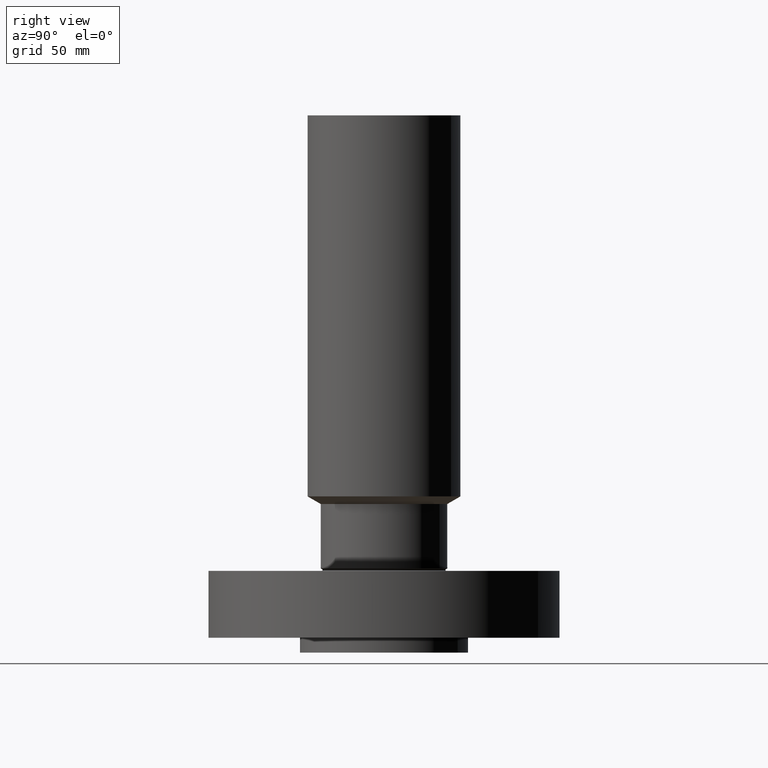
[diagram: clean part render]
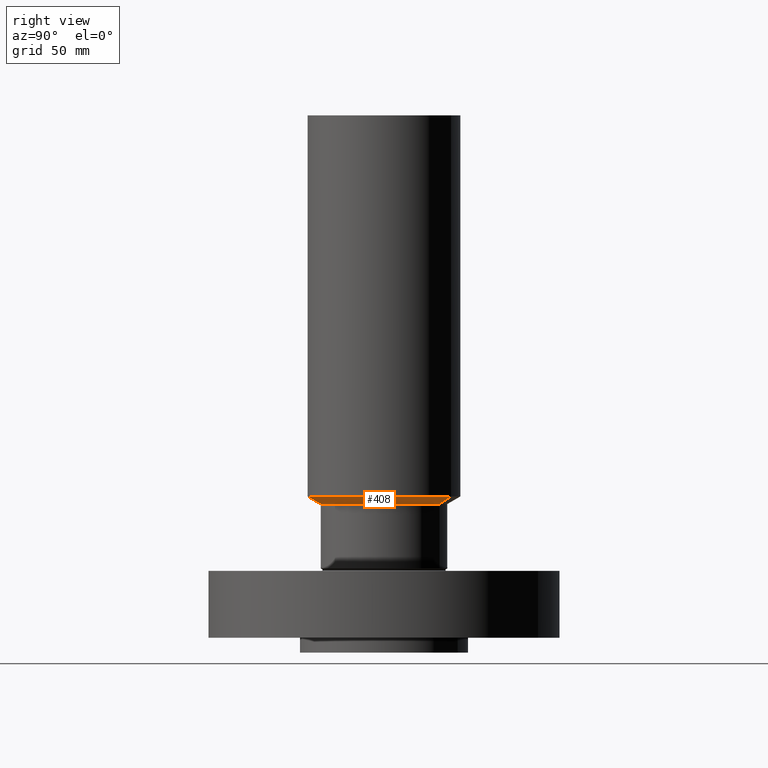
[diagram: same view with one face highlighted and labeled with its STEP entity id]
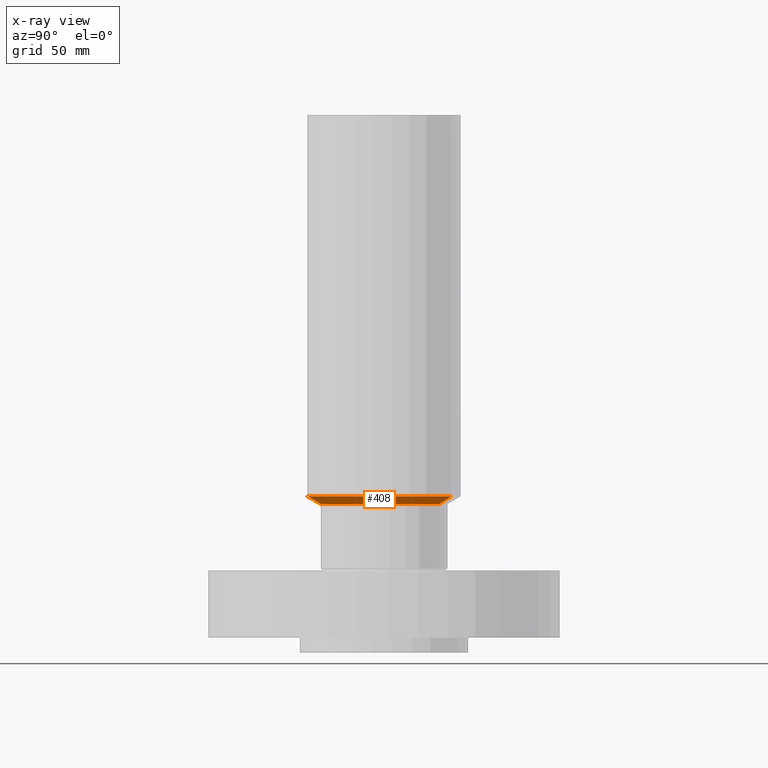
[diagram: x-ray of the same camera — body ghosted, the highlighted face saturated]
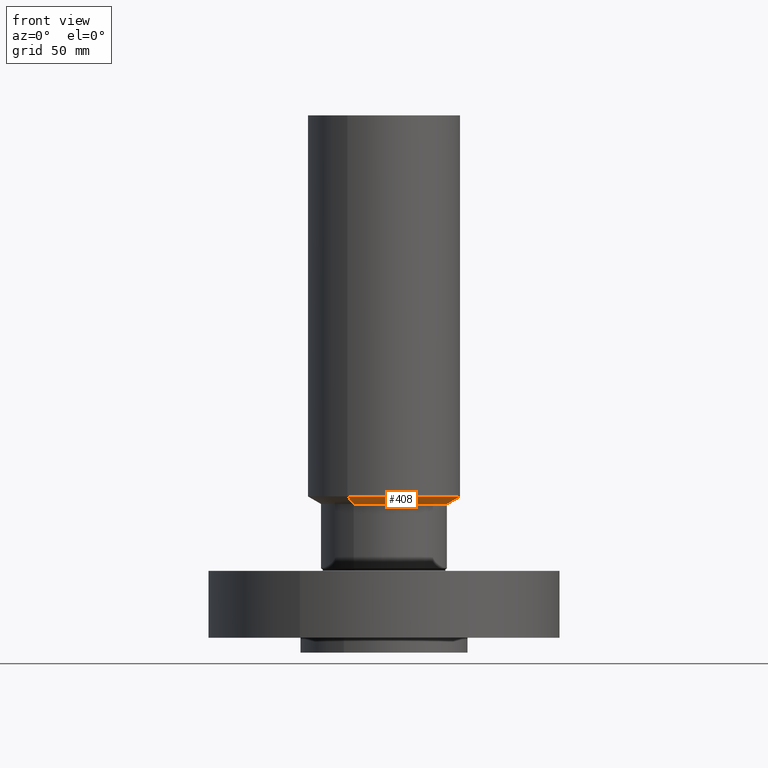
[diagram: same view with one face highlighted and labeled with its STEP entity id]
A machine part, right view. The second image highlights one B-rep face of the part: STEP entity #408.
The next image is the same camera in x-ray: the body ghosted, the highlighted face saturated — about 0% of this face is hidden behind the body in this view.
A second angle (front view) of the same face is appended — the face is thin or edge-on in the first view.
In plain terms, the highlighted conical surface has half-angle 60 deg.
Its self-contained STEP definition (entity closure, byte-faithful):
#349=AXIS2_PLACEMENT_3D('Circle Axis2P3D',#347,#348,$) ;
#381=AXIS2_PLACEMENT_3D('Cone Axis2P3D',#378,#379,#380) ;
#392=AXIS2_PLACEMENT_3D('Circle Axis2P3D',#390,#391,$) ;
#344=CARTESIAN_POINT('Vertex',(0.508191070922,0.930237515608,2.24000000001)) ;
#347=CARTESIAN_POINT('Axis2P3D Location',(0.,0.,2.24000000001)) ;
#351=CARTESIAN_POINT('Vertex',(-0.508191070922,-0.930237515608,2.24000000001)) ;
#378=CARTESIAN_POINT('Axis2P3D Location',(0.,0.,2.24000000001)) ;
#383=CARTESIAN_POINT('Line Origine',(0.560927880169,1.02677159742,2.30350852962)) ;
#387=CARTESIAN_POINT('Vertex',(0.613664689416,1.12330567922,2.36701705923)) ;
#390=CARTESIAN_POINT('Axis2P3D Location',(0.,0.,2.36701705923)) ;
#394=CARTESIAN_POINT('Vertex',(-0.613664689416,-1.12330567922,2.36701705923)) ;
#397=CARTESIAN_POINT('Line Origine',(-0.560927880169,-1.02677159742,2.30350852962)) ;
#348=DIRECTION('Axis2P3D Direction',(0.,0.,-0.0393700787402)) ;
#379=DIRECTION('Axis2P3D Direction',(-0.,-0.,0.0393700787402)) ;
#380=DIRECTION('Axis2P3D XDirection',(0.0188750212049,0.0345504945626,0.)) ;
#384=DIRECTION('Vector Direction',(0.0163462478604,0.0299216060045,0.0196850393701)) ;
#391=DIRECTION('Axis2P3D Direction',(-0.,0.,0.0393700787402)) ;
#398=DIRECTION('Vector Direction',(-0.0163462478604,-0.0299216060045,0.0196850393701)) ;
#385=VECTOR('Line Direction',#384,0.0393700787402) ;
#399=VECTOR('Line Direction',#398,0.0393700787402) ;
#403=ORIENTED_EDGE('',*,*,#353,.F.) ;
#404=ORIENTED_EDGE('',*,*,#389,.T.) ;
#405=ORIENTED_EDGE('',*,*,#396,.T.) ;
#406=ORIENTED_EDGE('',*,*,#401,.F.) ;
#408=ADVANCED_FACE('PartBody',(#407),#382,.T.) ;
#350=CIRCLE('generated circle',#349,1.06) ;
#393=CIRCLE('generated circle',#392,1.28000000001) ;
#382=CONICAL_SURFACE('Cone',#381,1.06,1.0471975512) ;
#353=EDGE_CURVE('',#345,#352,#350,.T.) ;
#389=EDGE_CURVE('',#345,#388,#386,.T.) ;
#396=EDGE_CURVE('',#388,#395,#393,.F.) ;
#401=EDGE_CURVE('',#352,#395,#400,.T.) ;
#402=EDGE_LOOP('',(#403,#404,#405,#406)) ;
#407=FACE_OUTER_BOUND('',#402,.T.) ;
#386=LINE('Line',#383,#385) ;
#400=LINE('Line',#397,#399) ;
#345=VERTEX_POINT('',#344) ;
#352=VERTEX_POINT('',#351) ;
#388=VERTEX_POINT('',#387) ;
#395=VERTEX_POINT('',#394) ;